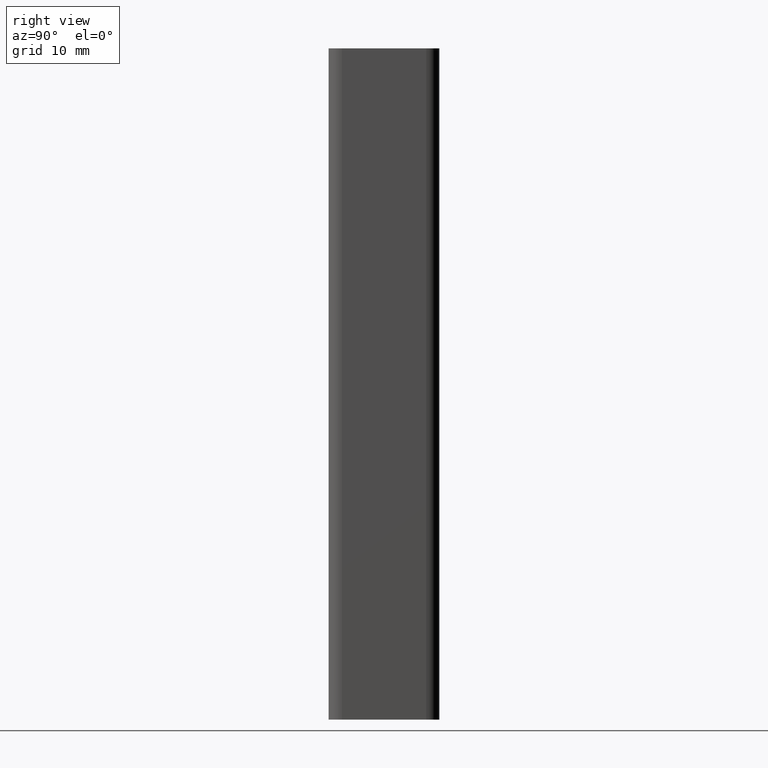
[diagram: clean part render]
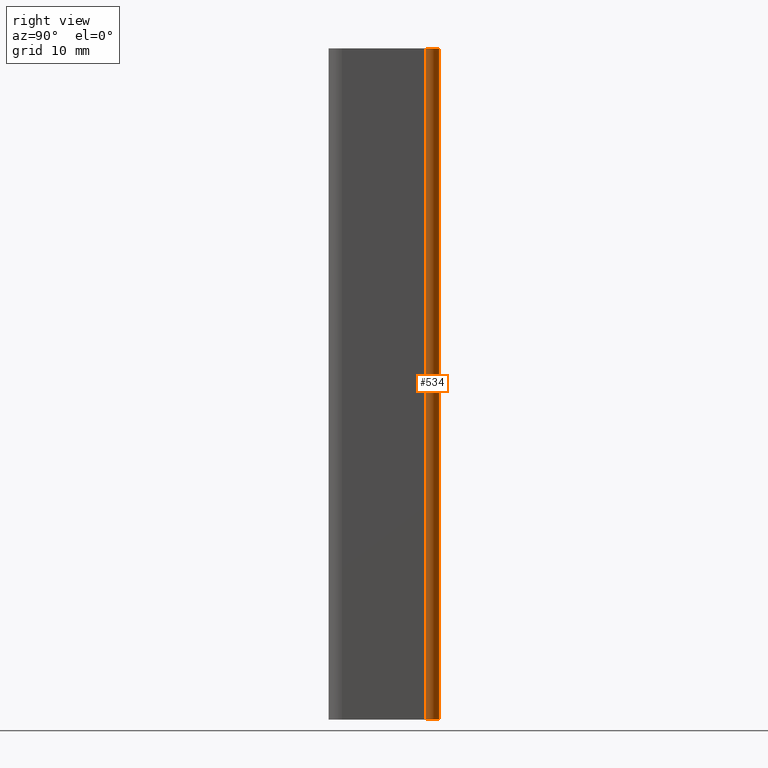
[diagram: same view with one face highlighted and labeled with its STEP entity id]
A machine part, right view. The second image highlights one B-rep face of the part: STEP entity #534.
In plain terms, the highlighted cylindrical surface (edge-blend (fillet) strip) has radius 2 mm, axis along (0, 0, 1).
Its self-contained STEP definition (entity closure, byte-faithful):
#41=CIRCLE('',#585,2.00000000000006);
#42=CIRCLE('',#586,2.00000000000006);
#59=CYLINDRICAL_SURFACE('',#584,2.00000000000006);
#82=FACE_OUTER_BOUND('',#112,.T.);
#112=EDGE_LOOP('',(#421,#422,#423,#424));
#159=LINE('',#877,#207);
#161=LINE('',#883,#209);
#207=VECTOR('',#715,100.);
#209=VECTOR('',#721,100.);
#259=VERTEX_POINT('',#874);
#260=VERTEX_POINT('',#876);
#261=VERTEX_POINT('',#880);
#262=VERTEX_POINT('',#882);
#327=EDGE_CURVE('',#260,#259,#159,.T.);
#329=EDGE_CURVE('',#259,#261,#41,.T.);
#330=EDGE_CURVE('',#262,#261,#161,.T.);
#331=EDGE_CURVE('',#260,#262,#42,.T.);
#421=ORIENTED_EDGE('',*,*,#329,.T.);
#422=ORIENTED_EDGE('',*,*,#330,.F.);
#423=ORIENTED_EDGE('',*,*,#331,.F.);
#424=ORIENTED_EDGE('',*,*,#327,.T.);
#534=ADVANCED_FACE('',(#82),#59,.T.);
#584=AXIS2_PLACEMENT_3D('',#879,#717,#718);
#585=AXIS2_PLACEMENT_3D('',#881,#719,#720);
#586=AXIS2_PLACEMENT_3D('',#884,#722,#723);
#715=DIRECTION('',(0.,0.,1.));
#717=DIRECTION('center_axis',(0.,0.,1.));
#718=DIRECTION('ref_axis',(-1.,3.10862446895036E-14,0.));
#719=DIRECTION('center_axis',(0.,0.,-1.));
#720=DIRECTION('ref_axis',(-1.,3.10862446895036E-14,0.));
#721=DIRECTION('',(0.,0.,1.));
#722=DIRECTION('center_axis',(0.,0.,-1.));
#723=DIRECTION('ref_axis',(-1.,3.10862446895036E-14,0.));
#874=CARTESIAN_POINT('',(18.,8.25000000000006,100.));
#876=CARTESIAN_POINT('',(18.,8.25000000000006,0.));
#877=CARTESIAN_POINT('',(18.,8.25000000000006,0.));
#879=CARTESIAN_POINT('Origin',(17.9999999999999,6.25000000000001,0.));
#880=CARTESIAN_POINT('',(20.,6.24999999999994,100.));
#881=CARTESIAN_POINT('Origin',(17.9999999999999,6.25000000000001,100.));
#882=CARTESIAN_POINT('',(20.,6.24999999999994,0.));
#883=CARTESIAN_POINT('',(20.,6.24999999999994,0.));
#884=CARTESIAN_POINT('Origin',(17.9999999999999,6.25000000000001,0.));